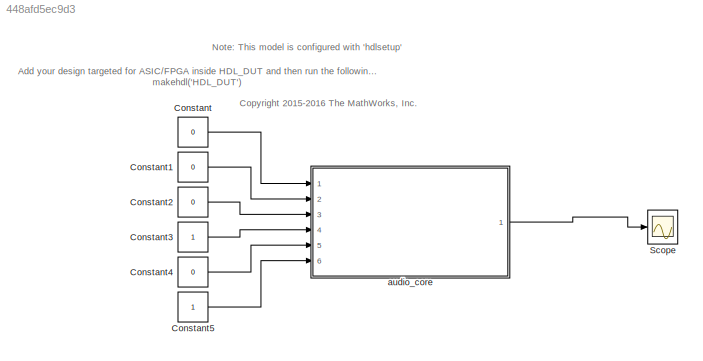
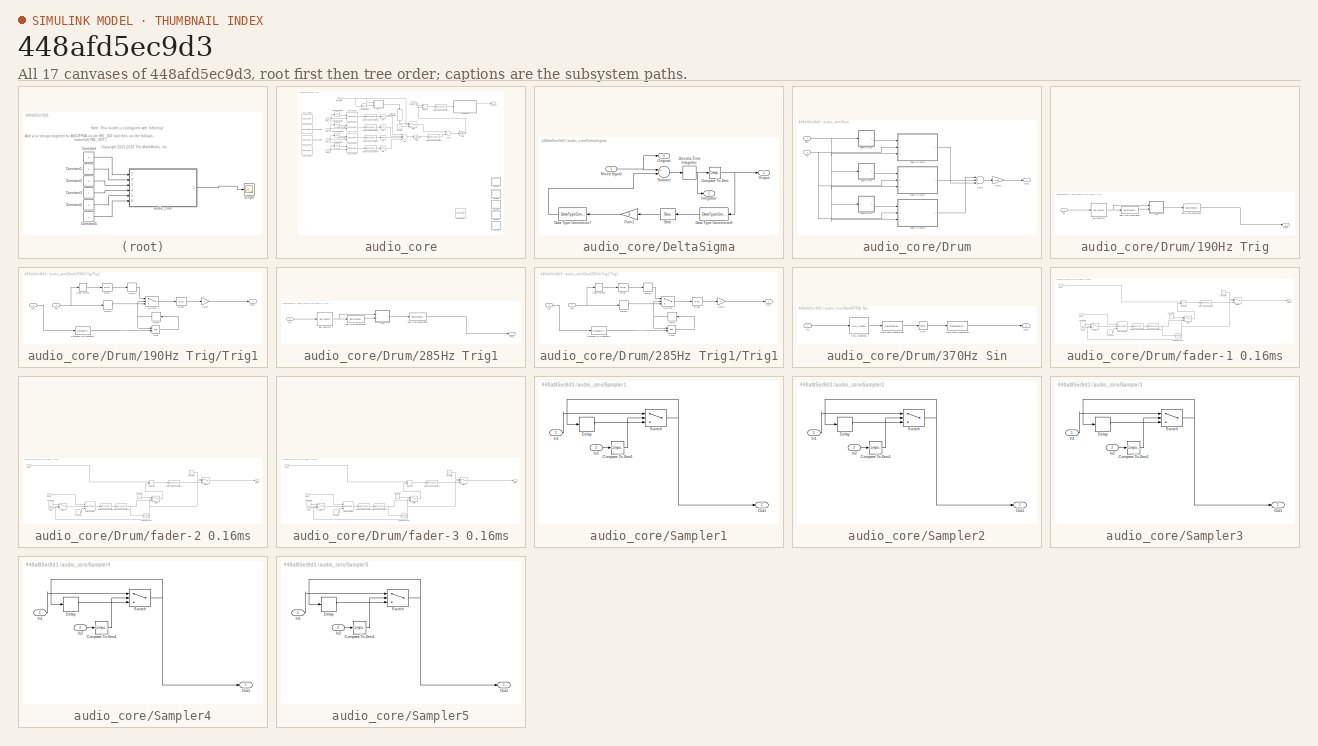
[diagram: thumbnail index - all 17 canvases of the model, root first then tree order]
MODEL slx_448afd5ec9d3
KIND model
CONFIG AbsTol = auto
CONFIG EnableMultiTasking = off
CONFIG FixedStep = auto
CONFIG MaxStep = auto
CONFIG MinStep = auto
CONFIG RelTol = 1e-3
CONFIG SampleTimeConstraint = Unconstrained
CONFIG Solver = FixedStepDiscrete
CONFIG SolverName = FixedStepDiscrete
CONFIG StartTime = 0.0
CONFIG StopTime = 0.1
BLOCK [Constant] Constant
  OutDataTypeStr = boolean
  SampleTime = 1e-08
  Value = 0
BLOCK [Constant] Constant1
  OutDataTypeStr = boolean
  SampleTime = 1e-08
  Value = 0
BLOCK [Constant] Constant2
  OutDataTypeStr = boolean
  SampleTime = 1e-08
  Value = 0
BLOCK [Constant] Constant3
  OutDataTypeStr = boolean
  SampleTime = 1e-08
BLOCK [Constant] Constant4
  OutDataTypeStr = boolean
  SampleTime = 1e-08
  Value = 0
BLOCK [Constant] Constant5
  OutDataTypeStr = fixdt(0,8,8)
  SampleTime = 1e-08
BLOCK [Scope] Scope
  Floating = off
  NumInputPorts = 1
  Ports = [1]
  ScopeSpecificationString = Simulink.scopes.TimeScopeBlockCfg('CurrentConfiguration', extmgr.ConfigurationSet(extmgr.Configuration('Core','General UI',true),extmgr.Configuration('Core','Source UI',true),extmgr.Configuration('Sources','WiredSimulink',true),extmgr.Configuration('Visuals','Time Domain',true,'SerializedDisplays',{struct('MinYLimReal','-0.125','MaxYLimReal','1.125','YLabelReal','','MinYLimMag','0.00000','MaxYLimM...<+2048ch>
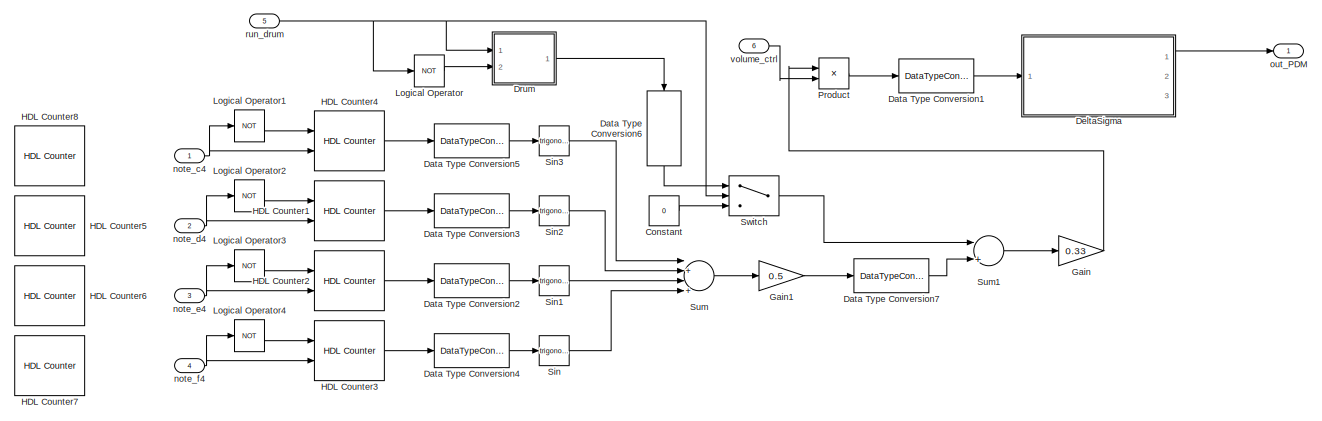
[diagram: audio_core - part 1/2, full width, top band]
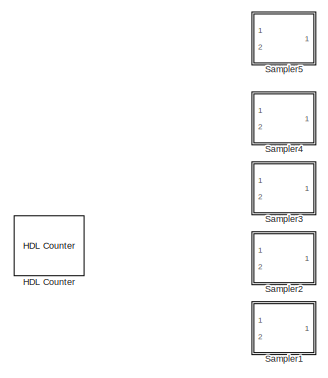
[diagram: audio_core - part 2/2, bottom right region]
BLOCK [SubSystem] audio_core
  Ports = [6, 1]
  RequestExecContextInheritance = off
BLOCK [Constant] audio_core/Constant
  OutDataTypeStr = fixdt(1,32,30)
  SampleTime = 1e-08
  Value = 0
BLOCK [DataTypeConversion] audio_core/Data Type Conversion1
  OutDataTypeStr = fixdt(1,24,14)
  RndMeth = Floor
  SaturateOnIntegerOverflow = off
BLOCK [DataTypeConversion] audio_core/Data Type Conversion2
  ConvertRealWorld = Stored Integer (SI)
  OutDataTypeStr = fixdt(1,32,28)
  RndMeth = Floor
  SaturateOnIntegerOverflow = off
BLOCK [DataTypeConversion] audio_core/Data Type Conversion3
  ConvertRealWorld = Stored Integer (SI)
  OutDataTypeStr = fixdt(1,32,28)
  RndMeth = Floor
  SaturateOnIntegerOverflow = off
BLOCK [DataTypeConversion] audio_core/Data Type Conversion4
  ConvertRealWorld = Stored Integer (SI)
  OutDataTypeStr = fixdt(1,32,28)
  RndMeth = Floor
  SaturateOnIntegerOverflow = off
BLOCK [DataTypeConversion] audio_core/Data Type Conversion5
  ConvertRealWorld = Stored Integer (SI)
  OutDataTypeStr = fixdt(1,32,28)
  RndMeth = Floor
  SaturateOnIntegerOverflow = off
BLOCK [DataTypeConversion] audio_core/Data Type Conversion6
  OutDataTypeStr = fixdt(1,32,30)
  RndMeth = Floor
  SaturateOnIntegerOverflow = off
BLOCK [DataTypeConversion] audio_core/Data Type Conversion7
  OutDataTypeStr = fixdt(1,32,30)
  RndMeth = Floor
  SaturateOnIntegerOverflow = off
BLOCK [SubSystem] audio_core/DeltaSigma
  Ports = [1, 3]
  RequestExecContextInheritance = off
BLOCK [Bias] audio_core/DeltaSigma/Bias
  Bias = -0.5
  SaturateOnIntegerOverflow = off
BLOCK [Reference] audio_core/DeltaSigma/Compare To Zero  REF=simulink/Logic and Bit
Operations/Compare
To Zero
  Ports = [1, 1]
  SourceBlock = simulink/Logic and Bit\nOperations/Compare\nTo Zero
  SourceProductBaseCode = SL
  SourceProductName = Simulink
  SourceType = Compare To Zero
BLOCK [DataTypeConversion] audio_core/DeltaSigma/Data Type Conversion6
  OutDataTypeStr = fixdt(1,16,14)
  RndMeth = Floor
  SaturateOnIntegerOverflow = off
BLOCK [DataTypeConversion] audio_core/DeltaSigma/Data Type Conversion7
  OutDataTypeStr = fixdt(1,24,14)
  RndMeth = Floor
  SaturateOnIntegerOverflow = off
BLOCK [DiscreteIntegrator] audio_core/DeltaSigma/Discrete-Time Integrator
  ICPrevOutput = DiscIntNeverNeededParam
  ICPrevScaledInput = DiscIntNeverNeededParam
  InitialConditionSetting = Auto
  IntegratorMethod = Accumulation: Forward Euler
  LowerSaturationLimit = -1
  OutDataTypeStr = fixdt(1,24,14)
  Ports = [1, 1]
  SampleTime = -1
  UpperSaturationLimit = 1
  gainval = 1
BLOCK [Gain] audio_core/DeltaSigma/Gain1
  Gain = 2
  OutDataTypeStr = Inherit: Inherit via internal rule
  ParamDataTypeStr = Inherit: Inherit via internal rule
  SaturateOnIntegerOverflow = off
BLOCK [Outport] audio_core/DeltaSigma/Integrator
  IconDisplay = Port number
  Port = 2
  VectorParamsAs1DForOutWhenUnconnected = off
BLOCK [Inport] audio_core/DeltaSigma/Mixed Signal
  IconDisplay = Port number
BLOCK [Outport] audio_core/DeltaSigma/Original
  IconDisplay = Port number
  Port = 3
  VectorParamsAs1DForOutWhenUnconnected = off
BLOCK [Outport] audio_core/DeltaSigma/Output
  IconDisplay = Port number
BLOCK [Sum] audio_core/DeltaSigma/Subtract
  AccumDataTypeStr = fixdt(1,16,12)
  Inputs = +-
  OutDataTypeStr = Inherit: Inherit via internal rule
  Ports = [2, 1]
  SaturateOnIntegerOverflow = off
BLOCK [SubSystem] audio_core/Drum
  Ports = [2, 1]
  RequestExecContextInheritance = off
BLOCK [SubSystem] audio_core/Drum/190Hz Trig
  Ports = [1, 1]
  RequestExecContextInheritance = off
BLOCK [DataTypeConversion] audio_core/Drum/190Hz Trig/Data Type Conversion6
  ConvertRealWorld = Stored Integer (SI)
  OutDataTypeStr = fixdt(1,22,18)
  RndMeth = Floor
  SaturateOnIntegerOverflow = off
BLOCK [DataTypeConversion] audio_core/Drum/190Hz Trig/Data Type Conversion7
  OutDataTypeStr = fixdt(1,20,16)
  RndMeth = Floor
  SaturateOnIntegerOverflow = off
BLOCK [Reference] audio_core/Drum/190Hz Trig/HDL Counter6  REF=hdlsllib/Sources/HDL Counter
  Ports = [1, 1]
  SourceBlock = hdlsllib/Sources/HDL Counter
  SourceProductBaseCode = SL
  SourceProductName = Simulink
  SourceType = HDL Counter
BLOCK [Inport] audio_core/Drum/190Hz Trig/In1
  IconDisplay = Port number
BLOCK [Outport] audio_core/Drum/190Hz Trig/Out1
  IconDisplay = Port number
BLOCK [SubSystem] audio_core/Drum/190Hz Trig/Trig1
  Ports = [2, 1]
  RequestExecContextInheritance = off
BLOCK [Bias] audio_core/Drum/190Hz Trig/Trig1/Bias
  Bias = 1
  SaturateOnIntegerOverflow = off
BLOCK [Bias] audio_core/Drum/190Hz Trig/Trig1/Bias1
  Bias = -0.5
  SaturateOnIntegerOverflow = off
BLOCK [Reference] audio_core/Drum/190Hz Trig/Trig1/Compare To Constant4  REF=simulink/Logic and Bit
Operations/Compare
To Constant
  Ports = [1, 1]
  SourceBlock = simulink/Logic and Bit\nOperations/Compare\nTo Constant
  SourceProductBaseCode = SL
  SourceProductName = Simulink
  SourceType = Compare To Constant
BLOCK [Delay] audio_core/Drum/190Hz Trig/Trig1/Delay
  DelayLength = 1
  InitialCondition = 0
  InputPortMap = u0
  Ports = [1, 1]
BLOCK [Delay] audio_core/Drum/190Hz Trig/Trig1/Delay1
  DelayLength = 1
  InitialCondition = 0
  InputPortMap = u0
  Ports = [1, 1]
BLOCK [Delay] audio_core/Drum/190Hz Trig/Trig1/Delay2
  DelayLength = 1
  InitialCondition = 0
  InputPortMap = u0
  Ports = [1, 1]
BLOCK [Gain] audio_core/Drum/190Hz Trig/Trig1/Gain1
  Gain = 2
  OutDataTypeStr = Inherit: Inherit via internal rule
  ParamDataTypeStr = Inherit: Inherit via internal rule
  SaturateOnIntegerOverflow = off
BLOCK [Inport] audio_core/Drum/190Hz Trig/Trig1/In1
  IconDisplay = Port number
BLOCK [Inport] audio_core/Drum/190Hz Trig/Trig1/In2
  IconDisplay = Port number
  Port = 2
BLOCK [Outport] audio_core/Drum/190Hz Trig/Trig1/Out1
  IconDisplay = Port number
BLOCK [Switch] audio_core/Drum/190Hz Trig/Trig1/Switch1
  Criteria = u2 > Threshold
  InputSameDT = off
  SaturateOnIntegerOverflow = off
BLOCK [UnaryMinus] audio_core/Drum/190Hz Trig/Trig1/Unary Minus
BLOCK [Logic] audio_core/Drum/190Hz Trig/Trig1/XOR
  AllPortsSameDT = off
  IconShape = distinctive
  Operator = XOR
  OutDataTypeStr = boolean
  Ports = [2, 1]
BLOCK [SubSystem] audio_core/Drum/285Hz Trig1
  Ports = [1, 1]
  RequestExecContextInheritance = off
BLOCK [DataTypeConversion] audio_core/Drum/285Hz Trig1/Data Type Conversion6
  ConvertRealWorld = Stored Integer (SI)
  OutDataTypeStr = fixdt(1,23,19)
  RndMeth = Floor
  SaturateOnIntegerOverflow = off
BLOCK [DataTypeConversion] audio_core/Drum/285Hz Trig1/Data Type Conversion7
  OutDataTypeStr = fixdt(1,20,16)
  RndMeth = Floor
  SaturateOnIntegerOverflow = off
BLOCK [Reference] audio_core/Drum/285Hz Trig1/HDL Counter6  REF=hdlsllib/Sources/HDL Counter
  Ports = [1, 1]
  SourceBlock = hdlsllib/Sources/HDL Counter
  SourceProductBaseCode = SL
  SourceProductName = Simulink
  SourceType = HDL Counter
BLOCK [Inport] audio_core/Drum/285Hz Trig1/In1
  IconDisplay = Port number
BLOCK [Outport] audio_core/Drum/285Hz Trig1/Out1
  IconDisplay = Port number
BLOCK [SubSystem] audio_core/Drum/285Hz Trig1/Trig1
  Ports = [2, 1]
  RequestExecContextInheritance = off
BLOCK [Bias] audio_core/Drum/285Hz Trig1/Trig1/Bias
  Bias = 1
  SaturateOnIntegerOverflow = off
BLOCK [Bias] audio_core/Drum/285Hz Trig1/Trig1/Bias1
  Bias = -0.5
  SaturateOnIntegerOverflow = off
BLOCK [Reference] audio_core/Drum/285Hz Trig1/Trig1/Compare To Constant4  REF=simulink/Logic and Bit
Operations/Compare
To Constant
  Ports = [1, 1]
  SourceBlock = simulink/Logic and Bit\nOperations/Compare\nTo Constant
  SourceProductBaseCode = SL
  SourceProductName = Simulink
  SourceType = Compare To Constant
BLOCK [Delay] audio_core/Drum/285Hz Trig1/Trig1/Delay
  DelayLength = 1
  InitialCondition = 0
  InputPortMap = u0
  Ports = [1, 1]
BLOCK [Delay] audio_core/Drum/285Hz Trig1/Trig1/Delay1
  DelayLength = 1
  InitialCondition = 0
  InputPortMap = u0
  Ports = [1, 1]
BLOCK [Delay] audio_core/Drum/285Hz Trig1/Trig1/Delay2
  DelayLength = 1
  InitialCondition = 0
  InputPortMap = u0
  Ports = [1, 1]
BLOCK [Gain] audio_core/Drum/285Hz Trig1/Trig1/Gain1
  Gain = 2
  OutDataTypeStr = Inherit: Inherit via internal rule
  ParamDataTypeStr = Inherit: Inherit via internal rule
  SaturateOnIntegerOverflow = off
BLOCK [Inport] audio_core/Drum/285Hz Trig1/Trig1/In1
  IconDisplay = Port number
BLOCK [Inport] audio_core/Drum/285Hz Trig1/Trig1/In2
  IconDisplay = Port number
  Port = 2
BLOCK [Outport] audio_core/Drum/285Hz Trig1/Trig1/Out1
  IconDisplay = Port number
BLOCK [Switch] audio_core/Drum/285Hz Trig1/Trig1/Switch1
  Criteria = u2 > Threshold
  InputSameDT = off
  SaturateOnIntegerOverflow = off
BLOCK [UnaryMinus] audio_core/Drum/285Hz Trig1/Trig1/Unary Minus
BLOCK [Logic] audio_core/Drum/285Hz Trig1/Trig1/XOR
  AllPortsSameDT = off
  IconShape = distinctive
  Operator = XOR
  OutDataTypeStr = boolean
  Ports = [2, 1]
BLOCK [SubSystem] audio_core/Drum/370Hz Sin
  Ports = [1, 1]
  RequestExecContextInheritance = off
BLOCK [DataTypeConversion] audio_core/Drum/370Hz Sin/Data Type Conversion6
  ConvertRealWorld = Stored Integer (SI)
  OutDataTypeStr = fixdt(1,21,17)
  RndMeth = Floor
  SaturateOnIntegerOverflow = off
BLOCK [DataTypeConversion] audio_core/Drum/370Hz Sin/Data Type Conversion7
  OutDataTypeStr = fixdt(1,20,18)
  RndMeth = Floor
  SaturateOnIntegerOverflow = off
BLOCK [Reference] audio_core/Drum/370Hz Sin/HDL Counter5  REF=hdlsllib/Sources/HDL Counter
  Ports = [1, 1]
  SourceBlock = hdlsllib/Sources/HDL Counter
  SourceProductBaseCode = SL
  SourceProductName = Simulink
  SourceType = HDL Counter
BLOCK [Inport] audio_core/Drum/370Hz Sin/In1
  IconDisplay = Port number
BLOCK [Outport] audio_core/Drum/370Hz Sin/Out1
  IconDisplay = Port number
BLOCK [Trigonometry] audio_core/Drum/370Hz Sin/Sin4
  ApproximationMethod = CORDIC
  NumberOfIterations = 5
  OutputSignalType = real
  Ports = [1, 1]
BLOCK [Gain] audio_core/Drum/Gain1
  Gain = 0.33
  OutDataTypeStr = Inherit: Inherit via internal rule
  ParamDataTypeStr = Inherit: Inherit via internal rule
  SaturateOnIntegerOverflow = off
BLOCK [Outport] audio_core/Drum/Out1
  IconDisplay = Port number
BLOCK [Sum] audio_core/Drum/Sum1
  InputSameDT = off
  Inputs = |+|+|+|
  OutDataTypeStr = Inherit: Inherit via internal rule
  Ports = [3, 1]
  SaturateOnIntegerOverflow = off
BLOCK [Inport] audio_core/Drum/enb
  IconDisplay = Port number
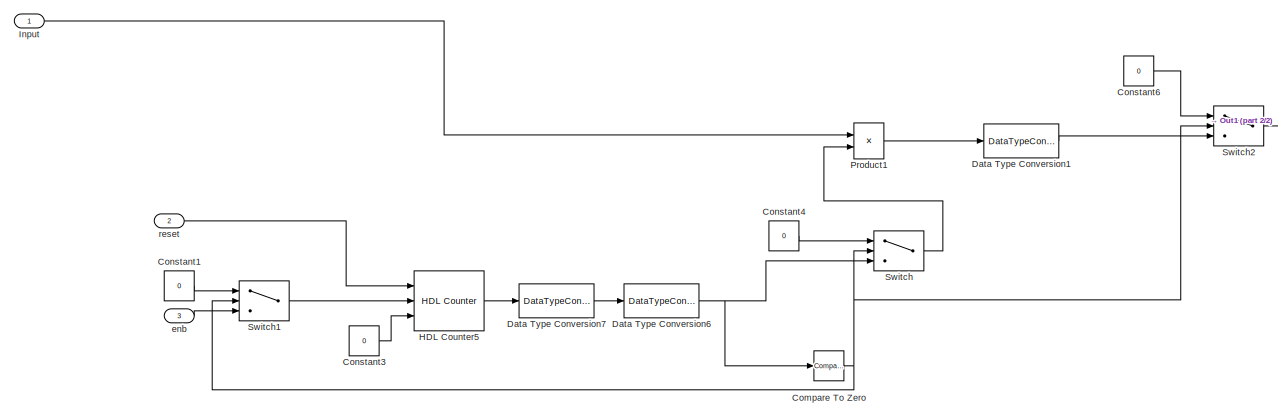
[diagram: audio_core/Drum/fader-1 0.16ms - part 1/2, most of the canvas]
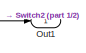
[diagram: audio_core/Drum/fader-1 0.16ms - part 2/2, middle right region]
BLOCK [SubSystem] audio_core/Drum/fader-1 0.16ms
  Ports = [3, 1]
  RequestExecContextInheritance = off
BLOCK [Reference] audio_core/Drum/fader-1 0.16ms/Compare To Zero  REF=simulink/Logic and Bit
Operations/Compare
To Zero
  Ports = [1, 1]
  SourceBlock = simulink/Logic and Bit\nOperations/Compare\nTo Zero
  SourceProductBaseCode = SL
  SourceProductName = Simulink
  SourceType = Compare To Zero
BLOCK [Constant] audio_core/Drum/fader-1 0.16ms/Constant1
  OutDataTypeStr = boolean
  SampleTime = 1e-08
  Value = 0
BLOCK [Constant] audio_core/Drum/fader-1 0.16ms/Constant3
  OutDataTypeStr = boolean
  SampleTime = 1e-08
  Value = 0
BLOCK [Constant] audio_core/Drum/fader-1 0.16ms/Constant4
  OutDataTypeStr = fixdt(1,20,18)
  SampleTime = 1e-08
  Value = 0
BLOCK [Constant] audio_core/Drum/fader-1 0.16ms/Constant6
  OutDataTypeStr = fixdt(1,20,18)
  SampleTime = 1e-08
  Value = 0
BLOCK [DataTypeConversion] audio_core/Drum/fader-1 0.16ms/Data Type Conversion1
  OutDataTypeStr = fixdt(1,20,18)
  RndMeth = Floor
  SaturateOnIntegerOverflow = off
BLOCK [DataTypeConversion] audio_core/Drum/fader-1 0.16ms/Data Type Conversion6
  OutDataTypeStr = fixdt(1,20,18)
  RndMeth = Floor
  SaturateOnIntegerOverflow = off
BLOCK [DataTypeConversion] audio_core/Drum/fader-1 0.16ms/Data Type Conversion7
  ConvertRealWorld = Stored Integer (SI)
  OutDataTypeStr = fixdt(1,29,27)
  RndMeth = Floor
  SaturateOnIntegerOverflow = off
BLOCK [Reference] audio_core/Drum/fader-1 0.16ms/HDL Counter5  REF=hdlsllib/Sources/HDL Counter
  Ports = [3, 1]
  SourceBlock = hdlsllib/Sources/HDL Counter
  SourceProductBaseCode = SL
  SourceProductName = Simulink
  SourceType = HDL Counter
BLOCK [Inport] audio_core/Drum/fader-1 0.16ms/Input
  IconDisplay = Port number
BLOCK [Outport] audio_core/Drum/fader-1 0.16ms/Out1
  IconDisplay = Port number
BLOCK [Product] audio_core/Drum/fader-1 0.16ms/Product1
  InputSameDT = off
  OutDataTypeStr = Inherit: Inherit via internal rule
  Ports = [2, 1]
  RndMeth = Floor
  SaturateOnIntegerOverflow = off
BLOCK [Switch] audio_core/Drum/fader-1 0.16ms/Switch
  Criteria = u2 > Threshold
  InputSameDT = off
  SaturateOnIntegerOverflow = off
BLOCK [Switch] audio_core/Drum/fader-1 0.16ms/Switch1
  Criteria = u2 > Threshold
  InputSameDT = off
  SaturateOnIntegerOverflow = off
BLOCK [Switch] audio_core/Drum/fader-1 0.16ms/Switch2
  Criteria = u2 > Threshold
  InputSameDT = off
  SaturateOnIntegerOverflow = off
BLOCK [Inport] audio_core/Drum/fader-1 0.16ms/enb
  IconDisplay = Port number
  Port = 3
BLOCK [Inport] audio_core/Drum/fader-1 0.16ms/reset
  IconDisplay = Port number
  Port = 2
BLOCK [SubSystem] audio_core/Drum/fader-2 0.16ms
  Ports = [3, 1]
  RequestExecContextInheritance = off
BLOCK [Reference] audio_core/Drum/fader-2 0.16ms/Compare To Zero  REF=simulink/Logic and Bit
Operations/Compare
To Zero
  Ports = [1, 1]
  SourceBlock = simulink/Logic and Bit\nOperations/Compare\nTo Zero
  SourceProductBaseCode = SL
  SourceProductName = Simulink
  SourceType = Compare To Zero
BLOCK [Constant] audio_core/Drum/fader-2 0.16ms/Constant1
  OutDataTypeStr = boolean
  SampleTime = 1e-08
  Value = 0
BLOCK [Constant] audio_core/Drum/fader-2 0.16ms/Constant3
  OutDataTypeStr = boolean
  SampleTime = 1e-08
  Value = 0
BLOCK [Constant] audio_core/Drum/fader-2 0.16ms/Constant4
  OutDataTypeStr = fixdt(1,20,18)
  SampleTime = 1e-08
  Value = 0
BLOCK [Constant] audio_core/Drum/fader-2 0.16ms/Constant6
  OutDataTypeStr = fixdt(1,20,18)
  SampleTime = 1e-08
  Value = 0
BLOCK [DataTypeConversion] audio_core/Drum/fader-2 0.16ms/Data Type Conversion1
  OutDataTypeStr = fixdt(1,20,18)
  RndMeth = Floor
  SaturateOnIntegerOverflow = off
BLOCK [DataTypeConversion] audio_core/Drum/fader-2 0.16ms/Data Type Conversion6
  OutDataTypeStr = fixdt(1,20,18)
  RndMeth = Floor
  SaturateOnIntegerOverflow = off
BLOCK [DataTypeConversion] audio_core/Drum/fader-2 0.16ms/Data Type Conversion7
  ConvertRealWorld = Stored Integer (SI)
  OutDataTypeStr = fixdt(1,29,27)
  RndMeth = Floor
  SaturateOnIntegerOverflow = off
BLOCK [Reference] audio_core/Drum/fader-2 0.16ms/HDL Counter5  REF=hdlsllib/Sources/HDL Counter
  Ports = [3, 1]
  SourceBlock = hdlsllib/Sources/HDL Counter
  SourceProductBaseCode = SL
  SourceProductName = Simulink
  SourceType = HDL Counter
BLOCK [Inport] audio_core/Drum/fader-2 0.16ms/Input
  IconDisplay = Port number
BLOCK [Outport] audio_core/Drum/fader-2 0.16ms/Out1
  IconDisplay = Port number
BLOCK [Product] audio_core/Drum/fader-2 0.16ms/Product1
  InputSameDT = off
  OutDataTypeStr = Inherit: Inherit via internal rule
  Ports = [2, 1]
  RndMeth = Floor
  SaturateOnIntegerOverflow = off
BLOCK [Switch] audio_core/Drum/fader-2 0.16ms/Switch
  Criteria = u2 > Threshold
  InputSameDT = off
  SaturateOnIntegerOverflow = off
BLOCK [Switch] audio_core/Drum/fader-2 0.16ms/Switch1
  Criteria = u2 > Threshold
  InputSameDT = off
  SaturateOnIntegerOverflow = off
BLOCK [Switch] audio_core/Drum/fader-2 0.16ms/Switch2
  Criteria = u2 > Threshold
  InputSameDT = off
  SaturateOnIntegerOverflow = off
BLOCK [Inport] audio_core/Drum/fader-2 0.16ms/enb
  IconDisplay = Port number
  Port = 3
BLOCK [Inport] audio_core/Drum/fader-2 0.16ms/reset
  IconDisplay = Port number
  Port = 2
BLOCK [SubSystem] audio_core/Drum/fader-3 0.16ms
  Ports = [3, 1]
  RequestExecContextInheritance = off
BLOCK [Reference] audio_core/Drum/fader-3 0.16ms/Compare To Zero  REF=simulink/Logic and Bit
Operations/Compare
To Zero
  Ports = [1, 1]
  SourceBlock = simulink/Logic and Bit\nOperations/Compare\nTo Zero
  SourceProductBaseCode = SL
  SourceProductName = Simulink
  SourceType = Compare To Zero
BLOCK [Constant] audio_core/Drum/fader-3 0.16ms/Constant1
  OutDataTypeStr = boolean
  SampleTime = 1e-08
  Value = 0
BLOCK [Constant] audio_core/Drum/fader-3 0.16ms/Constant3
  OutDataTypeStr = boolean
  SampleTime = 1e-08
  Value = 0
BLOCK [Constant] audio_core/Drum/fader-3 0.16ms/Constant4
  OutDataTypeStr = fixdt(1,20,18)
  SampleTime = 1e-08
  Value = 0
BLOCK [Constant] audio_core/Drum/fader-3 0.16ms/Constant6
  OutDataTypeStr = fixdt(1,20,18)
  SampleTime = 1e-08
  Value = 0
BLOCK [DataTypeConversion] audio_core/Drum/fader-3 0.16ms/Data Type Conversion1
  OutDataTypeStr = fixdt(1,20,18)
  RndMeth = Floor
  SaturateOnIntegerOverflow = off
BLOCK [DataTypeConversion] audio_core/Drum/fader-3 0.16ms/Data Type Conversion6
  OutDataTypeStr = fixdt(1,20,18)
  RndMeth = Floor
  SaturateOnIntegerOverflow = off
BLOCK [DataTypeConversion] audio_core/Drum/fader-3 0.16ms/Data Type Conversion7
  ConvertRealWorld = Stored Integer (SI)
  OutDataTypeStr = fixdt(1,29,27)
  RndMeth = Floor
  SaturateOnIntegerOverflow = off
BLOCK [Reference] audio_core/Drum/fader-3 0.16ms/HDL Counter5  REF=hdlsllib/Sources/HDL Counter
  Ports = [3, 1]
  SourceBlock = hdlsllib/Sources/HDL Counter
  SourceProductBaseCode = SL
  SourceProductName = Simulink
  SourceType = HDL Counter
BLOCK [Inport] audio_core/Drum/fader-3 0.16ms/Input
  IconDisplay = Port number
BLOCK [Outport] audio_core/Drum/fader-3 0.16ms/Out1
  IconDisplay = Port number
BLOCK [Product] audio_core/Drum/fader-3 0.16ms/Product1
  InputSameDT = off
  OutDataTypeStr = Inherit: Inherit via internal rule
  Ports = [2, 1]
  RndMeth = Floor
  SaturateOnIntegerOverflow = off
BLOCK [Switch] audio_core/Drum/fader-3 0.16ms/Switch
  Criteria = u2 > Threshold
  InputSameDT = off
  SaturateOnIntegerOverflow = off
BLOCK [Switch] audio_core/Drum/fader-3 0.16ms/Switch1
  Criteria = u2 > Threshold
  InputSameDT = off
  SaturateOnIntegerOverflow = off
BLOCK [Switch] audio_core/Drum/fader-3 0.16ms/Switch2
  Criteria = u2 > Threshold
  InputSameDT = off
  SaturateOnIntegerOverflow = off
BLOCK [Inport] audio_core/Drum/fader-3 0.16ms/enb
  IconDisplay = Port number
  Port = 3
BLOCK [Inport] audio_core/Drum/fader-3 0.16ms/reset
  IconDisplay = Port number
  Port = 2
BLOCK [Inport] audio_core/Drum/rst
  IconDisplay = Port number
  Port = 2
BLOCK [Gain] audio_core/Gain
  Gain = 0.33
  OutDataTypeStr = Inherit: Inherit via internal rule
  ParamDataTypeStr = Inherit: Inherit via internal rule
  SaturateOnIntegerOverflow = off
BLOCK [Gain] audio_core/Gain1
  Gain = 0.5
  OutDataTypeStr = Inherit: Inherit via internal rule
  ParamDataTypeStr = Inherit: Inherit via internal rule
  SaturateOnIntegerOverflow = off
BLOCK [Reference] audio_core/HDL Counter  REF=hdlsllib/Sources/HDL Counter
  Commented = on
  Ports = [0, 1]
  SourceBlock = hdlsllib/Sources/HDL Counter
  SourceProductBaseCode = SL
  SourceProductName = Simulink
  SourceType = HDL Counter
BLOCK [Reference] audio_core/HDL Counter1  REF=hdlsllib/Sources/HDL Counter
  Ports = [2, 1]
  SourceBlock = hdlsllib/Sources/HDL Counter
  SourceProductBaseCode = SL
  SourceProductName = Simulink
  SourceType = HDL Counter
BLOCK [Reference] audio_core/HDL Counter2  REF=hdlsllib/Sources/HDL Counter
  Ports = [2, 1]
  SourceBlock = hdlsllib/Sources/HDL Counter
  SourceProductBaseCode = SL
  SourceProductName = Simulink
  SourceType = HDL Counter
BLOCK [Reference] audio_core/HDL Counter3  REF=hdlsllib/Sources/HDL Counter
  Ports = [2, 1]
  SourceBlock = hdlsllib/Sources/HDL Counter
  SourceProductBaseCode = SL
  SourceProductName = Simulink
  SourceType = HDL Counter
BLOCK [Reference] audio_core/HDL Counter4  REF=hdlsllib/Sources/HDL Counter
  Ports = [2, 1]
  SourceBlock = hdlsllib/Sources/HDL Counter
  SourceProductBaseCode = SL
  SourceProductName = Simulink
  SourceType = HDL Counter
BLOCK [Reference] audio_core/HDL Counter5  REF=hdlsllib/Sources/HDL Counter
  Commented = on
  Ports = [2, 1]
  SourceBlock = hdlsllib/Sources/HDL Counter
  SourceProductBaseCode = SL
  SourceProductName = Simulink
  SourceType = HDL Counter
BLOCK [Reference] audio_core/HDL Counter6  REF=hdlsllib/Sources/HDL Counter
  Commented = on
  Ports = [2, 1]
  SourceBlock = hdlsllib/Sources/HDL Counter
  SourceProductBaseCode = SL
  SourceProductName = Simulink
  SourceType = HDL Counter
BLOCK [Reference] audio_core/HDL Counter7  REF=hdlsllib/Sources/HDL Counter
  Commented = on
  Ports = [2, 1]
  SourceBlock = hdlsllib/Sources/HDL Counter
  SourceProductBaseCode = SL
  SourceProductName = Simulink
  SourceType = HDL Counter
BLOCK [Reference] audio_core/HDL Counter8  REF=hdlsllib/Sources/HDL Counter
  Commented = on
  Ports = [2, 1]
  SourceBlock = hdlsllib/Sources/HDL Counter
  SourceProductBaseCode = SL
  SourceProductName = Simulink
  SourceType = HDL Counter
BLOCK [Logic] audio_core/Logical Operator
  AllPortsSameDT = off
  IconShape = distinctive
  Operator = NOT
  OutDataTypeStr = boolean
  Ports = [1, 1]
BLOCK [Logic] audio_core/Logical Operator1
  AllPortsSameDT = off
  IconShape = distinctive
  Operator = NOT
  OutDataTypeStr = boolean
  Ports = [1, 1]
BLOCK [Logic] audio_core/Logical Operator2
  AllPortsSameDT = off
  IconShape = distinctive
  Operator = NOT
  OutDataTypeStr = boolean
  Ports = [1, 1]
BLOCK [Logic] audio_core/Logical Operator3
  AllPortsSameDT = off
  IconShape = distinctive
  Operator = NOT
  OutDataTypeStr = boolean
  Ports = [1, 1]
BLOCK [Logic] audio_core/Logical Operator4
  AllPortsSameDT = off
  IconShape = distinctive
  Operator = NOT
  OutDataTypeStr = boolean
  Ports = [1, 1]
BLOCK [Product] audio_core/Product
  InputSameDT = off
  OutDataTypeStr = Inherit: Inherit via internal rule
  Ports = [2, 1]
  RndMeth = Floor
  SaturateOnIntegerOverflow = off
BLOCK [SubSystem] audio_core/Sampler1
  Commented = on
  Ports = [2, 1]
  RequestExecContextInheritance = off
BLOCK [Reference] audio_core/Sampler1/Compare To Zero1  REF=simulink/Logic and Bit
Operations/Compare
To Zero
  Ports = [1, 1]
  SourceBlock = simulink/Logic and Bit\nOperations/Compare\nTo Zero
  SourceProductBaseCode = SL
  SourceProductName = Simulink
  SourceType = Compare To Zero
BLOCK [Delay] audio_core/Sampler1/Delay
  DelayLength = 1
  InitialCondition = 1
  InputPortMap = u0
  Ports = [1, 1]
  UseCircularBuffer = on
BLOCK [Inport] audio_core/Sampler1/In1
  IconDisplay = Port number
BLOCK [Inport] audio_core/Sampler1/In2
  IconDisplay = Port number
  Port = 2
BLOCK [Outport] audio_core/Sampler1/Out1
  IconDisplay = Port number
BLOCK [Switch] audio_core/Sampler1/Switch
  Criteria = u2 > Threshold
  InputSameDT = off
  SaturateOnIntegerOverflow = off
BLOCK [SubSystem] audio_core/Sampler2
  Commented = on
  Ports = [2, 1]
  RequestExecContextInheritance = off
BLOCK [Reference] audio_core/Sampler2/Compare To Zero1  REF=simulink/Logic and Bit
Operations/Compare
To Zero
  Ports = [1, 1]
  SourceBlock = simulink/Logic and Bit\nOperations/Compare\nTo Zero
  SourceProductBaseCode = SL
  SourceProductName = Simulink
  SourceType = Compare To Zero
BLOCK [Delay] audio_core/Sampler2/Delay
  DelayLength = 1
  InitialCondition = 1
  InputPortMap = u0
  Ports = [1, 1]
  UseCircularBuffer = on
BLOCK [Inport] audio_core/Sampler2/In1
  IconDisplay = Port number
BLOCK [Inport] audio_core/Sampler2/In2
  IconDisplay = Port number
  Port = 2
BLOCK [Outport] audio_core/Sampler2/Out1
  IconDisplay = Port number
BLOCK [Switch] audio_core/Sampler2/Switch
  Criteria = u2 > Threshold
  InputSameDT = off
  SaturateOnIntegerOverflow = off
BLOCK [SubSystem] audio_core/Sampler3
  Commented = on
  Ports = [2, 1]
  RequestExecContextInheritance = off
BLOCK [Reference] audio_core/Sampler3/Compare To Zero1  REF=simulink/Logic and Bit
Operations/Compare
To Zero
  Ports = [1, 1]
  SourceBlock = simulink/Logic and Bit\nOperations/Compare\nTo Zero
  SourceProductBaseCode = SL
  SourceProductName = Simulink
  SourceType = Compare To Zero
BLOCK [Delay] audio_core/Sampler3/Delay
  DelayLength = 1
  InitialCondition = 1
  InputPortMap = u0
  Ports = [1, 1]
  UseCircularBuffer = on
BLOCK [Inport] audio_core/Sampler3/In1
  IconDisplay = Port number
BLOCK [Inport] audio_core/Sampler3/In2
  IconDisplay = Port number
  Port = 2
BLOCK [Outport] audio_core/Sampler3/Out1
  IconDisplay = Port number
BLOCK [Switch] audio_core/Sampler3/Switch
  Criteria = u2 > Threshold
  InputSameDT = off
  SaturateOnIntegerOverflow = off
BLOCK [SubSystem] audio_core/Sampler4
  Commented = on
  Ports = [2, 1]
  RequestExecContextInheritance = off
BLOCK [Reference] audio_core/Sampler4/Compare To Zero1  REF=simulink/Logic and Bit
Operations/Compare
To Zero
  Ports = [1, 1]
  SourceBlock = simulink/Logic and Bit\nOperations/Compare\nTo Zero
  SourceProductBaseCode = SL
  SourceProductName = Simulink
  SourceType = Compare To Zero
BLOCK [Delay] audio_core/Sampler4/Delay
  DelayLength = 1
  InitialCondition = 1
  InputPortMap = u0
  Ports = [1, 1]
  UseCircularBuffer = on
BLOCK [Inport] audio_core/Sampler4/In1
  IconDisplay = Port number
BLOCK [Inport] audio_core/Sampler4/In2
  IconDisplay = Port number
  Port = 2
BLOCK [Outport] audio_core/Sampler4/Out1
  IconDisplay = Port number
BLOCK [Switch] audio_core/Sampler4/Switch
  Criteria = u2 > Threshold
  InputSameDT = off
  SaturateOnIntegerOverflow = off
BLOCK [SubSystem] audio_core/Sampler5
  Commented = on
  Ports = [2, 1]
  RequestExecContextInheritance = off
BLOCK [Reference] audio_core/Sampler5/Compare To Zero1  REF=simulink/Logic and Bit
Operations/Compare
To Zero
  Ports = [1, 1]
  SourceBlock = simulink/Logic and Bit\nOperations/Compare\nTo Zero
  SourceProductBaseCode = SL
  SourceProductName = Simulink
  SourceType = Compare To Zero
BLOCK [Delay] audio_core/Sampler5/Delay
  DelayLength = 1
  InitialCondition = 1
  InputPortMap = u0
  Ports = [1, 1]
  UseCircularBuffer = on
BLOCK [Inport] audio_core/Sampler5/In1
  IconDisplay = Port number
BLOCK [Inport] audio_core/Sampler5/In2
  IconDisplay = Port number
  Port = 2
BLOCK [Outport] audio_core/Sampler5/Out1
  IconDisplay = Port number
BLOCK [Switch] audio_core/Sampler5/Switch
  Criteria = u2 > Threshold
  InputSameDT = off
  SaturateOnIntegerOverflow = off
BLOCK [Trigonometry] audio_core/Sin
  ApproximationMethod = CORDIC
  NumberOfIterations = 5
  OutputSignalType = real
  Ports = [1, 1]
BLOCK [Trigonometry] audio_core/Sin1
  ApproximationMethod = CORDIC
  NumberOfIterations = 5
  OutputSignalType = real
  Ports = [1, 1]
BLOCK [Trigonometry] audio_core/Sin2
  ApproximationMethod = CORDIC
  NumberOfIterations = 5
  OutputSignalType = real
  Ports = [1, 1]
BLOCK [Trigonometry] audio_core/Sin3
  ApproximationMethod = CORDIC
  NumberOfIterations = 5
  OutputSignalType = real
  Ports = [1, 1]
BLOCK [Sum] audio_core/Sum
  InputSameDT = off
  Inputs = |+|+|+|+|
  OutDataTypeStr = Inherit: Inherit via internal rule
  Ports = [4, 1]
  SaturateOnIntegerOverflow = off
BLOCK [Sum] audio_core/Sum1
  InputSameDT = off
  Inputs = |+|+|
  OutDataTypeStr = Inherit: Inherit via internal rule
  Ports = [2, 1]
  SaturateOnIntegerOverflow = off
BLOCK [Switch] audio_core/Switch
  Criteria = u2 > Threshold
  InputSameDT = off
  SaturateOnIntegerOverflow = off
BLOCK [Inport] audio_core/note_c4
  IconDisplay = Port number
BLOCK [Inport] audio_core/note_d4
  IconDisplay = Port number
  Port = 2
BLOCK [Inport] audio_core/note_e4
  IconDisplay = Port number
  Port = 3
BLOCK [Inport] audio_core/note_f4
  IconDisplay = Port number
  Port = 4
BLOCK [Outport] audio_core/out_PDM
  IconDisplay = Port number
  VectorParamsAs1DForOutWhenUnconnected = off
BLOCK [Inport] audio_core/run_drum
  IconDisplay = Port number
  Port = 5
BLOCK [Inport] audio_core/volume_ctrl
  IconDisplay = Port number
  OutDataTypeStr = fixdt(0,8,8)
  Port = 6
ANNOTATION (root): Add your design targeted for ASIC/FPGA inside HDL_DUT and then run the following command: makehdl('HDL_DUT')
ANNOTATION (root): Note: This model is configured with ' hdlsetup '
ANNOTATION (root): <copyright redacted>
LINE Constant1:1 -> audio_core:2
LINE Constant2:1 -> audio_core:3
LINE Constant3:1 -> audio_core:4
LINE Constant4:1 -> audio_core:5
LINE Constant5:1 -> audio_core:6
LINE Constant:1 -> audio_core:1
LINE audio_core/Constant:1 -> audio_core/Switch:3
LINE audio_core/Data Type Conversion1:1 -> audio_core/DeltaSigma:1
LINE audio_core/Data Type Conversion2:1 -> audio_core/Sin1:1
LINE audio_core/Data Type Conversion3:1 -> audio_core/Sin2:1
LINE audio_core/Data Type Conversion4:1 -> audio_core/Sin:1
LINE audio_core/Data Type Conversion5:1 -> audio_core/Sin3:1
LINE audio_core/Data Type Conversion6:1 -> audio_core/Switch:1
LINE audio_core/Data Type Conversion7:1 -> audio_core/Sum1:2
LINE audio_core/DeltaSigma/Bias:1 -> audio_core/DeltaSigma/Gain1:1
NET audio_core/DeltaSigma/Compare To Zero:1 -> audio_core/DeltaSigma/Data Type Conversion6:1, audio_core/DeltaSigma/Output:1
LINE audio_core/DeltaSigma/Data Type Conversion6:1 -> audio_core/DeltaSigma/Bias:1
LINE audio_core/DeltaSigma/Data Type Conversion7:1 -> audio_core/DeltaSigma/Subtract:2
NET audio_core/DeltaSigma/Discrete-Time Integrator:1 -> audio_core/DeltaSigma/Compare To Zero:1, audio_core/DeltaSigma/Integrator:1
LINE audio_core/DeltaSigma/Gain1:1 -> audio_core/DeltaSigma/Data Type Conversion7:1
NET audio_core/DeltaSigma/Mixed Signal:1 -> audio_core/DeltaSigma/Original:1, audio_core/DeltaSigma/Subtract:1
LINE audio_core/DeltaSigma/Subtract:1 -> audio_core/DeltaSigma/Discrete-Time Integrator:1
LINE audio_core/DeltaSigma:1 -> audio_core/out_PDM:1
LINE audio_core/Drum/190Hz Trig/Data Type Conversion6:1 -> audio_core/Drum/190Hz Trig/Trig1:2
LINE audio_core/Drum/190Hz Trig/Data Type Conversion7:1 -> audio_core/Drum/190Hz Trig/Out1:1
NET audio_core/Drum/190Hz Trig/HDL Counter6:1 -> audio_core/Drum/190Hz Trig/Data Type Conversion6:1, audio_core/Drum/190Hz Trig/Trig1:1
LINE audio_core/Drum/190Hz Trig/In1:1 -> audio_core/Drum/190Hz Trig/HDL Counter6:1
LINE audio_core/Drum/190Hz Trig/Trig1/Bias1:1 -> audio_core/Drum/190Hz Trig/Trig1/Gain1:1
LINE audio_core/Drum/190Hz Trig/Trig1/Bias:1 -> audio_core/Drum/190Hz Trig/Trig1/Delay1:1
LINE audio_core/Drum/190Hz Trig/Trig1/Compare To Constant4:1 -> audio_core/Drum/190Hz Trig/Trig1/XOR:2
LINE audio_core/Drum/190Hz Trig/Trig1/Delay1:1 -> audio_core/Drum/190Hz Trig/Trig1/Switch1:1
LINE audio_core/Drum/190Hz Trig/Trig1/Delay2:1 -> audio_core/Drum/190Hz Trig/Trig1/Switch1:3
NET audio_core/Drum/190Hz Trig/Trig1/Delay:1 -> audio_core/Drum/190Hz Trig/Trig1/Switch1:2, audio_core/Drum/190Hz Trig/Trig1/XOR:1
LINE audio_core/Drum/190Hz Trig/Trig1/Gain1:1 -> audio_core/Drum/190Hz Trig/Trig1/Out1:1
LINE audio_core/Drum/190Hz Trig/Trig1/In1:1 -> audio_core/Drum/190Hz Trig/Trig1/Compare To Constant4:1
NET audio_core/Drum/190Hz Trig/Trig1/In2:1 -> audio_core/Drum/190Hz Trig/Trig1/Delay2:1, audio_core/Drum/190Hz Trig/Trig1/Unary Minus:1
LINE audio_core/Drum/190Hz Trig/Trig1/Switch1:1 -> audio_core/Drum/190Hz Trig/Trig1/Bias1:1
LINE audio_core/Drum/190Hz Trig/Trig1/Unary Minus:1 -> audio_core/Drum/190Hz Trig/Trig1/Bias:1
LINE audio_core/Drum/190Hz Trig/Trig1/XOR:1 -> audio_core/Drum/190Hz Trig/Trig1/Delay:1
LINE audio_core/Drum/190Hz Trig/Trig1:1 -> audio_core/Drum/190Hz Trig/Data Type Conversion7:1
LINE audio_core/Drum/190Hz Trig:1 -> audio_core/Drum/fader-2 0.16ms:1
LINE audio_core/Drum/285Hz Trig1/Data Type Conversion6:1 -> audio_core/Drum/285Hz Trig1/Trig1:2
LINE audio_core/Drum/285Hz Trig1/Data Type Conversion7:1 -> audio_core/Drum/285Hz Trig1/Out1:1
NET audio_core/Drum/285Hz Trig1/HDL Counter6:1 -> audio_core/Drum/285Hz Trig1/Data Type Conversion6:1, audio_core/Drum/285Hz Trig1/Trig1:1
LINE audio_core/Drum/285Hz Trig1/In1:1 -> audio_core/Drum/285Hz Trig1/HDL Counter6:1
LINE audio_core/Drum/285Hz Trig1/Trig1/Bias1:1 -> audio_core/Drum/285Hz Trig1/Trig1/Gain1:1
LINE audio_core/Drum/285Hz Trig1/Trig1/Bias:1 -> audio_core/Drum/285Hz Trig1/Trig1/Delay1:1
LINE audio_core/Drum/285Hz Trig1/Trig1/Compare To Constant4:1 -> audio_core/Drum/285Hz Trig1/Trig1/XOR:2
LINE audio_core/Drum/285Hz Trig1/Trig1/Delay1:1 -> audio_core/Drum/285Hz Trig1/Trig1/Switch1:1
LINE audio_core/Drum/285Hz Trig1/Trig1/Delay2:1 -> audio_core/Drum/285Hz Trig1/Trig1/Switch1:3
NET audio_core/Drum/285Hz Trig1/Trig1/Delay:1 -> audio_core/Drum/285Hz Trig1/Trig1/Switch1:2, audio_core/Drum/285Hz Trig1/Trig1/XOR:1
LINE audio_core/Drum/285Hz Trig1/Trig1/Gain1:1 -> audio_core/Drum/285Hz Trig1/Trig1/Out1:1
LINE audio_core/Drum/285Hz Trig1/Trig1/In1:1 -> audio_core/Drum/285Hz Trig1/Trig1/Compare To Constant4:1
NET audio_core/Drum/285Hz Trig1/Trig1/In2:1 -> audio_core/Drum/285Hz Trig1/Trig1/Delay2:1, audio_core/Drum/285Hz Trig1/Trig1/Unary Minus:1
LINE audio_core/Drum/285Hz Trig1/Trig1/Switch1:1 -> audio_core/Drum/285Hz Trig1/Trig1/Bias1:1
LINE audio_core/Drum/285Hz Trig1/Trig1/Unary Minus:1 -> audio_core/Drum/285Hz Trig1/Trig1/Bias:1
LINE audio_core/Drum/285Hz Trig1/Trig1/XOR:1 -> audio_core/Drum/285Hz Trig1/Trig1/Delay:1
LINE audio_core/Drum/285Hz Trig1/Trig1:1 -> audio_core/Drum/285Hz Trig1/Data Type Conversion7:1
LINE audio_core/Drum/285Hz Trig1:1 -> audio_core/Drum/fader-3 0.16ms:1
LINE audio_core/Drum/370Hz Sin/Data Type Conversion6:1 -> audio_core/Drum/370Hz Sin/Sin4:1
LINE audio_core/Drum/370Hz Sin/Data Type Conversion7:1 -> audio_core/Drum/370Hz Sin/Out1:1
LINE audio_core/Drum/370Hz Sin/HDL Counter5:1 -> audio_core/Drum/370Hz Sin/Data Type Conversion6:1
LINE audio_core/Drum/370Hz Sin/In1:1 -> audio_core/Drum/370Hz Sin/HDL Counter5:1
LINE audio_core/Drum/370Hz Sin/Sin4:1 -> audio_core/Drum/370Hz Sin/Data Type Conversion7:1
LINE audio_core/Drum/370Hz Sin:1 -> audio_core/Drum/fader-1 0.16ms:1
LINE audio_core/Drum/Gain1:1 -> audio_core/Drum/Out1:1
LINE audio_core/Drum/Sum1:1 -> audio_core/Drum/Gain1:1
NET audio_core/Drum/enb:1 -> audio_core/Drum/190Hz Trig:1, audio_core/Drum/285Hz Trig1:1, audio_core/Drum/370Hz Sin:1, audio_core/Drum/fader-1 0.16ms:3, audio_core/Drum/fader-2 0.16ms:3, audio_core/Drum/fader-3 0.16ms:3
NET audio_core/Drum/fader-1 0.16ms/Compare To Zero:1 -> audio_core/Drum/fader-1 0.16ms/Switch1:2, audio_core/Drum/fader-1 0.16ms/Switch2:2, audio_core/Drum/fader-1 0.16ms/Switch:2
LINE audio_core/Drum/fader-1 0.16ms/Constant1:1 -> audio_core/Drum/fader-1 0.16ms/Switch1:1
LINE audio_core/Drum/fader-1 0.16ms/Constant3:1 -> audio_core/Drum/fader-1 0.16ms/HDL Counter5:3
LINE audio_core/Drum/fader-1 0.16ms/Constant4:1 -> audio_core/Drum/fader-1 0.16ms/Switch:1
LINE audio_core/Drum/fader-1 0.16ms/Constant6:1 -> audio_core/Drum/fader-1 0.16ms/Switch2:1
LINE audio_core/Drum/fader-1 0.16ms/Data Type Conversion1:1 -> audio_core/Drum/fader-1 0.16ms/Switch2:3
NET audio_core/Drum/fader-1 0.16ms/Data Type Conversion6:1 -> audio_core/Drum/fader-1 0.16ms/Compare To Zero:1, audio_core/Drum/fader-1 0.16ms/Switch:3
LINE audio_core/Drum/fader-1 0.16ms/Data Type Conversion7:1 -> audio_core/Drum/fader-1 0.16ms/Data Type Conversion6:1
LINE audio_core/Drum/fader-1 0.16ms/HDL Counter5:1 -> audio_core/Drum/fader-1 0.16ms/Data Type Conversion7:1
LINE audio_core/Drum/fader-1 0.16ms/Input:1 -> audio_core/Drum/fader-1 0.16ms/Product1:1
LINE audio_core/Drum/fader-1 0.16ms/Product1:1 -> audio_core/Drum/fader-1 0.16ms/Data Type Conversion1:1
LINE audio_core/Drum/fader-1 0.16ms/Switch1:1 -> audio_core/Drum/fader-1 0.16ms/HDL Counter5:2
LINE audio_core/Drum/fader-1 0.16ms/Switch2:1 -> audio_core/Drum/fader-1 0.16ms/Out1:1
LINE audio_core/Drum/fader-1 0.16ms/Switch:1 -> audio_core/Drum/fader-1 0.16ms/Product1:2
LINE audio_core/Drum/fader-1 0.16ms/enb:1 -> audio_core/Drum/fader-1 0.16ms/Switch1:3
LINE audio_core/Drum/fader-1 0.16ms/reset:1 -> audio_core/Drum/fader-1 0.16ms/HDL Counter5:1
LINE audio_core/Drum/fader-1 0.16ms:1 -> audio_core/Drum/Sum1:1
NET audio_core/Drum/fader-2 0.16ms/Compare To Zero:1 -> audio_core/Drum/fader-2 0.16ms/Switch1:2, audio_core/Drum/fader-2 0.16ms/Switch2:2, audio_core/Drum/fader-2 0.16ms/Switch:2
LINE audio_core/Drum/fader-2 0.16ms/Constant1:1 -> audio_core/Drum/fader-2 0.16ms/Switch1:1
LINE audio_core/Drum/fader-2 0.16ms/Constant3:1 -> audio_core/Drum/fader-2 0.16ms/HDL Counter5:3
LINE audio_core/Drum/fader-2 0.16ms/Constant4:1 -> audio_core/Drum/fader-2 0.16ms/Switch:1
LINE audio_core/Drum/fader-2 0.16ms/Constant6:1 -> audio_core/Drum/fader-2 0.16ms/Switch2:1
LINE audio_core/Drum/fader-2 0.16ms/Data Type Conversion1:1 -> audio_core/Drum/fader-2 0.16ms/Switch2:3
NET audio_core/Drum/fader-2 0.16ms/Data Type Conversion6:1 -> audio_core/Drum/fader-2 0.16ms/Compare To Zero:1, audio_core/Drum/fader-2 0.16ms/Switch:3
LINE audio_core/Drum/fader-2 0.16ms/Data Type Conversion7:1 -> audio_core/Drum/fader-2 0.16ms/Data Type Conversion6:1
LINE audio_core/Drum/fader-2 0.16ms/HDL Counter5:1 -> audio_core/Drum/fader-2 0.16ms/Data Type Conversion7:1
LINE audio_core/Drum/fader-2 0.16ms/Input:1 -> audio_core/Drum/fader-2 0.16ms/Product1:1
LINE audio_core/Drum/fader-2 0.16ms/Product1:1 -> audio_core/Drum/fader-2 0.16ms/Data Type Conversion1:1
LINE audio_core/Drum/fader-2 0.16ms/Switch1:1 -> audio_core/Drum/fader-2 0.16ms/HDL Counter5:2
LINE audio_core/Drum/fader-2 0.16ms/Switch2:1 -> audio_core/Drum/fader-2 0.16ms/Out1:1
LINE audio_core/Drum/fader-2 0.16ms/Switch:1 -> audio_core/Drum/fader-2 0.16ms/Product1:2
LINE audio_core/Drum/fader-2 0.16ms/enb:1 -> audio_core/Drum/fader-2 0.16ms/Switch1:3
LINE audio_core/Drum/fader-2 0.16ms/reset:1 -> audio_core/Drum/fader-2 0.16ms/HDL Counter5:1
LINE audio_core/Drum/fader-2 0.16ms:1 -> audio_core/Drum/Sum1:2
NET audio_core/Drum/fader-3 0.16ms/Compare To Zero:1 -> audio_core/Drum/fader-3 0.16ms/Switch1:2, audio_core/Drum/fader-3 0.16ms/Switch2:2, audio_core/Drum/fader-3 0.16ms/Switch:2
LINE audio_core/Drum/fader-3 0.16ms/Constant1:1 -> audio_core/Drum/fader-3 0.16ms/Switch1:1
LINE audio_core/Drum/fader-3 0.16ms/Constant3:1 -> audio_core/Drum/fader-3 0.16ms/HDL Counter5:3
LINE audio_core/Drum/fader-3 0.16ms/Constant4:1 -> audio_core/Drum/fader-3 0.16ms/Switch:1
LINE audio_core/Drum/fader-3 0.16ms/Constant6:1 -> audio_core/Drum/fader-3 0.16ms/Switch2:1
LINE audio_core/Drum/fader-3 0.16ms/Data Type Conversion1:1 -> audio_core/Drum/fader-3 0.16ms/Switch2:3
NET audio_core/Drum/fader-3 0.16ms/Data Type Conversion6:1 -> audio_core/Drum/fader-3 0.16ms/Compare To Zero:1, audio_core/Drum/fader-3 0.16ms/Switch:3
LINE audio_core/Drum/fader-3 0.16ms/Data Type Conversion7:1 -> audio_core/Drum/fader-3 0.16ms/Data Type Conversion6:1
LINE audio_core/Drum/fader-3 0.16ms/HDL Counter5:1 -> audio_core/Drum/fader-3 0.16ms/Data Type Conversion7:1
LINE audio_core/Drum/fader-3 0.16ms/Input:1 -> audio_core/Drum/fader-3 0.16ms/Product1:1
LINE audio_core/Drum/fader-3 0.16ms/Product1:1 -> audio_core/Drum/fader-3 0.16ms/Data Type Conversion1:1
LINE audio_core/Drum/fader-3 0.16ms/Switch1:1 -> audio_core/Drum/fader-3 0.16ms/HDL Counter5:2
LINE audio_core/Drum/fader-3 0.16ms/Switch2:1 -> audio_core/Drum/fader-3 0.16ms/Out1:1
LINE audio_core/Drum/fader-3 0.16ms/Switch:1 -> audio_core/Drum/fader-3 0.16ms/Product1:2
LINE audio_core/Drum/fader-3 0.16ms/enb:1 -> audio_core/Drum/fader-3 0.16ms/Switch1:3
LINE audio_core/Drum/fader-3 0.16ms/reset:1 -> audio_core/Drum/fader-3 0.16ms/HDL Counter5:1
LINE audio_core/Drum/fader-3 0.16ms:1 -> audio_core/Drum/Sum1:3
NET audio_core/Drum/rst:1 -> audio_core/Drum/fader-1 0.16ms:2, audio_core/Drum/fader-2 0.16ms:2, audio_core/Drum/fader-3 0.16ms:2
LINE audio_core/Drum:1 -> audio_core/Data Type Conversion6:1
LINE audio_core/Gain1:1 -> audio_core/Data Type Conversion7:1
LINE audio_core/Gain:1 -> audio_core/Product:1
LINE audio_core/HDL Counter1:1 -> audio_core/Data Type Conversion3:1
LINE audio_core/HDL Counter2:1 -> audio_core/Data Type Conversion2:1
LINE audio_core/HDL Counter3:1 -> audio_core/Data Type Conversion4:1
LINE audio_core/HDL Counter4:1 -> audio_core/Data Type Conversion5:1
LINE audio_core/Logical Operator1:1 -> audio_core/HDL Counter4:1
LINE audio_core/Logical Operator2:1 -> audio_core/HDL Counter1:1
LINE audio_core/Logical Operator3:1 -> audio_core/HDL Counter2:1
LINE audio_core/Logical Operator4:1 -> audio_core/HDL Counter3:1
LINE audio_core/Logical Operator:1 -> audio_core/Drum:2
LINE audio_core/Product:1 -> audio_core/Data Type Conversion1:1
LINE audio_core/Sampler1/Compare To Zero1:1 -> audio_core/Sampler1/Switch:2
LINE audio_core/Sampler1/Delay:1 -> audio_core/Sampler1/Switch:3
LINE audio_core/Sampler1/In1:1 -> audio_core/Sampler1/Switch:1
LINE audio_core/Sampler1/In2:1 -> audio_core/Sampler1/Compare To Zero1:1
NET audio_core/Sampler1/Switch:1 -> audio_core/Sampler1/Delay:1, audio_core/Sampler1/Out1:1
LINE audio_core/Sampler2/Compare To Zero1:1 -> audio_core/Sampler2/Switch:2
LINE audio_core/Sampler2/Delay:1 -> audio_core/Sampler2/Switch:3
LINE audio_core/Sampler2/In1:1 -> audio_core/Sampler2/Switch:1
LINE audio_core/Sampler2/In2:1 -> audio_core/Sampler2/Compare To Zero1:1
NET audio_core/Sampler2/Switch:1 -> audio_core/Sampler2/Delay:1, audio_core/Sampler2/Out1:1
LINE audio_core/Sampler3/Compare To Zero1:1 -> audio_core/Sampler3/Switch:2
LINE audio_core/Sampler3/Delay:1 -> audio_core/Sampler3/Switch:3
LINE audio_core/Sampler3/In1:1 -> audio_core/Sampler3/Switch:1
LINE audio_core/Sampler3/In2:1 -> audio_core/Sampler3/Compare To Zero1:1
NET audio_core/Sampler3/Switch:1 -> audio_core/Sampler3/Delay:1, audio_core/Sampler3/Out1:1
LINE audio_core/Sampler4/Compare To Zero1:1 -> audio_core/Sampler4/Switch:2
LINE audio_core/Sampler4/Delay:1 -> audio_core/Sampler4/Switch:3
LINE audio_core/Sampler4/In1:1 -> audio_core/Sampler4/Switch:1
LINE audio_core/Sampler4/In2:1 -> audio_core/Sampler4/Compare To Zero1:1
NET audio_core/Sampler4/Switch:1 -> audio_core/Sampler4/Delay:1, audio_core/Sampler4/Out1:1
LINE audio_core/Sampler5/Compare To Zero1:1 -> audio_core/Sampler5/Switch:2
LINE audio_core/Sampler5/Delay:1 -> audio_core/Sampler5/Switch:3
LINE audio_core/Sampler5/In1:1 -> audio_core/Sampler5/Switch:1
LINE audio_core/Sampler5/In2:1 -> audio_core/Sampler5/Compare To Zero1:1
NET audio_core/Sampler5/Switch:1 -> audio_core/Sampler5/Delay:1, audio_core/Sampler5/Out1:1
LINE audio_core/Sin1:1 -> audio_core/Sum:3
LINE audio_core/Sin2:1 -> audio_core/Sum:2
LINE audio_core/Sin3:1 -> audio_core/Sum:1
LINE audio_core/Sin:1 -> audio_core/Sum:4
LINE audio_core/Sum1:1 -> audio_core/Gain:1
LINE audio_core/Sum:1 -> audio_core/Gain1:1
LINE audio_core/Switch:1 -> audio_core/Sum1:1
NET audio_core/note_c4:1 -> audio_core/HDL Counter4:2, audio_core/Logical Operator1:1
NET audio_core/note_d4:1 -> audio_core/HDL Counter1:2, audio_core/Logical Operator2:1
NET audio_core/note_e4:1 -> audio_core/HDL Counter2:2, audio_core/Logical Operator3:1
NET audio_core/note_f4:1 -> audio_core/HDL Counter3:2, audio_core/Logical Operator4:1
NET audio_core/run_drum:1 -> audio_core/Drum:1, audio_core/Logical Operator:1, audio_core/Switch:2
LINE audio_core/volume_ctrl:1 -> audio_core/Product:2
LINE audio_core:1 -> Scope:1
note: NET lines group one-source signal fan-out (src -> all destinations, sorted); 1:1 wires keep LINE
